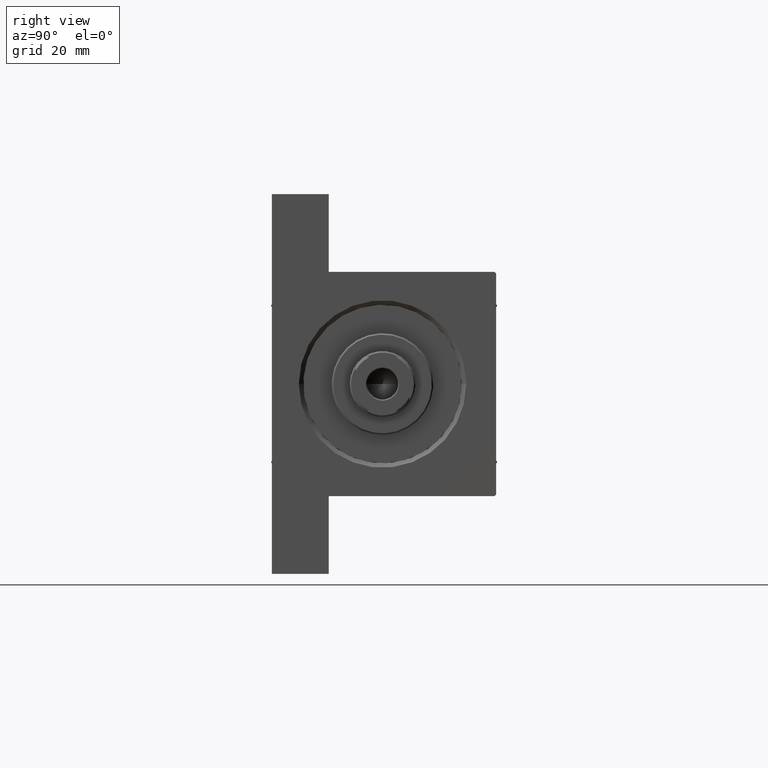
[diagram: clean part render]
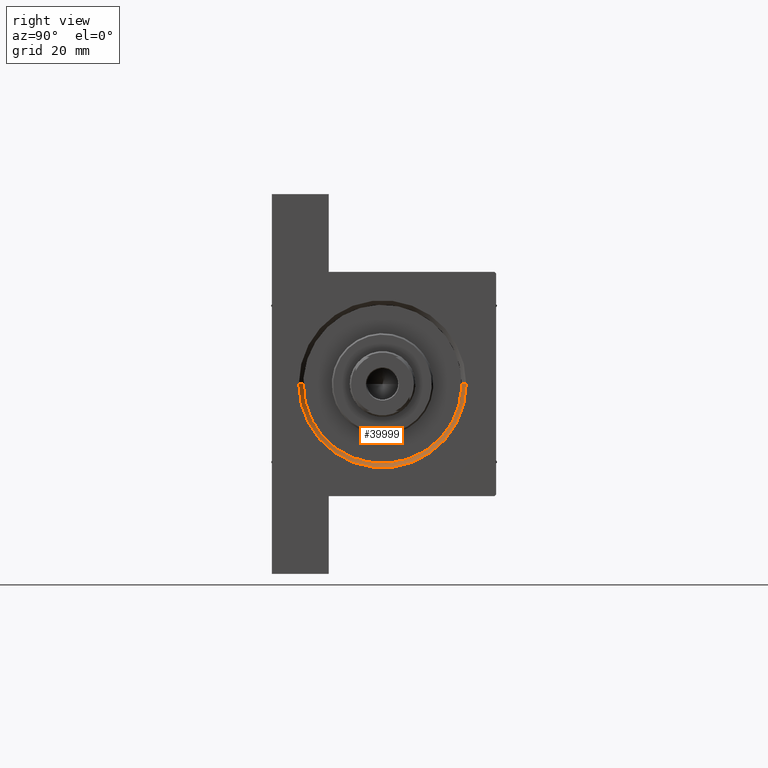
[diagram: same view with one face highlighted and labeled with its STEP entity id]
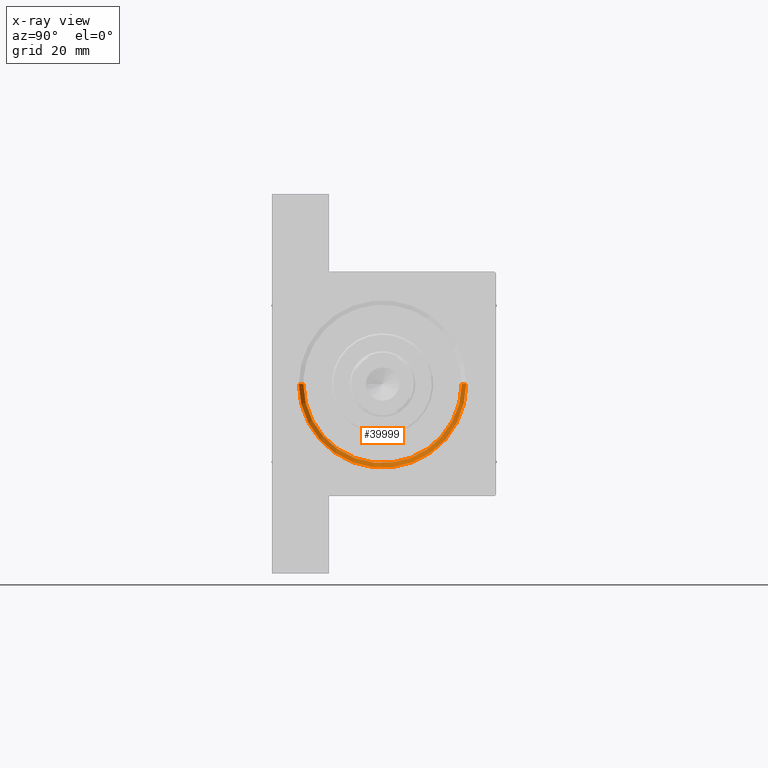
[diagram: x-ray of the same camera — body ghosted, the highlighted face saturated]
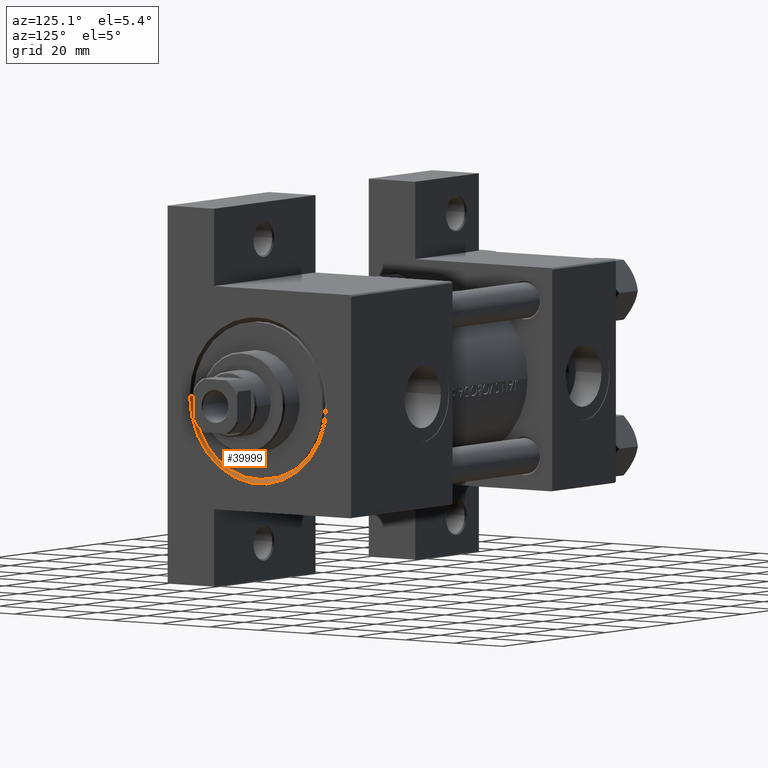
[diagram: same view with one face highlighted and labeled with its STEP entity id]
A machine part, right view. The second image highlights one B-rep face of the part: STEP entity #39999.
The next image is the same camera in x-ray: the body ghosted, the highlighted face saturated — about 0% of this face is hidden behind the body in this view.
A second angle (auxiliary view) of the same face is appended — the face is thin or edge-on in the first view.
In plain terms, the highlighted conical surface has half-angle 45 deg.
Its self-contained STEP definition (entity closure, byte-faithful):
#10 = CARTESIAN_POINT ( 'NONE',  ( 152.5000000000000568, 3.245314017740486554E-15, 26.00000000000000355 ) ) ;
#31 = ORIENTED_EDGE ( 'NONE', *, *, #28928, .T. ) ;
#2326 = AXIS2_PLACEMENT_3D ( 'NONE', #20925, #38977, #42103 ) ;
#2554 = CARTESIAN_POINT ( 'NONE',  ( 152.5000000000000568, 0.000000000000000000, -27.00000000000000355 ) ) ;
#5787 = EDGE_LOOP ( 'NONE', ( #13755, #11848, #31, #44317 ) ) ;
#5990 = EDGE_CURVE ( 'NONE', #23637, #9000, #11152, .T. ) ;
#6277 = FACE_OUTER_BOUND ( 'NONE', #5787, .T. ) ;
#9000 = VERTEX_POINT ( 'NONE', #10 ) ;
#9287 = VERTEX_POINT ( 'NONE', #42762 ) ;
#11152 = CIRCLE ( 'NONE', #35716, 26.50000000000000355 ) ;
#11848 = ORIENTED_EDGE ( 'NONE', *, *, #5990, .F. ) ;
#11854 = VECTOR ( 'NONE', #27494, 1000.000000000000114 ) ;
#13755 = ORIENTED_EDGE ( 'NONE', *, *, #42888, .F. ) ;
#16899 = CARTESIAN_POINT ( 'NONE',  ( 152.5000000000000568, 3.245314017740486554E-15, 26.00000000000000355 ) ) ;
#20010 = VECTOR ( 'NONE', #42533, 1000.000000000000114 ) ;
#20177 = DIRECTION ( 'NONE',  ( 1.000000000000000000, 0.000000000000000000, 0.000000000000000000 ) ) ;
#20925 = CARTESIAN_POINT ( 'NONE',  ( 154.0000000000000000, 0.000000000000000000, -0.5000000000000004441 ) ) ;
#21655 = DIRECTION ( 'NONE',  ( 0.000000000000000000, 0.000000000000000000, -1.000000000000000000 ) ) ;
#23637 = VERTEX_POINT ( 'NONE', #2554 ) ;
#23793 = CARTESIAN_POINT ( 'NONE',  ( 152.5000000000000568, 0.000000000000000000, -0.5000000000000004441 ) ) ;
#24741 = CARTESIAN_POINT ( 'NONE',  ( 152.5000000000000568, 0.000000000000000000, -27.00000000000000355 ) ) ;
#27442 = EDGE_CURVE ( 'NONE', #9287, #42350, #35347, .T. ) ;
#27494 = DIRECTION ( 'NONE',  ( 0.7071067811865361374, 8.659560562355073374E-17, 0.7071067811865588970 ) ) ;
#27931 = CONICAL_SURFACE ( 'NONE', #37135, 26.50000000000000355, 0.7853981633974644883 ) ;
#27932 = DIRECTION ( 'NONE',  ( 1.000000000000000000, 0.000000000000000000, 0.000000000000000000 ) ) ;
#28928 = EDGE_CURVE ( 'NONE', #23637, #42350, #43007, .T. ) ;
#31939 = DIRECTION ( 'NONE',  ( 0.000000000000000000, 0.000000000000000000, 1.000000000000000000 ) ) ;
#32237 = CARTESIAN_POINT ( 'NONE',  ( 152.5000000000000568, 0.000000000000000000, -0.5000000000000004441 ) ) ;
#35347 = CIRCLE ( 'NONE', #2326, 27.99999999999999645 ) ;
#35716 = AXIS2_PLACEMENT_3D ( 'NONE', #23793, #20177, #31939 ) ;
#37135 = AXIS2_PLACEMENT_3D ( 'NONE', #32237, #27932, #21655 ) ;
#38074 = LINE ( 'NONE', #16899, #11854 ) ;
#38977 = DIRECTION ( 'NONE',  ( -1.000000000000000000, -0.000000000000000000, 0.000000000000000000 ) ) ;
#39999 = ADVANCED_FACE ( 'NONE', ( #6277 ), #27931, .F. ) ;
#42103 = DIRECTION ( 'NONE',  ( 0.000000000000000000, 0.000000000000000000, 1.000000000000000000 ) ) ;
#42350 = VERTEX_POINT ( 'NONE', #47287 ) ;
#42533 = DIRECTION ( 'NONE',  ( 0.7071067811865361374, 0.000000000000000000, -0.7071067811865588970 ) ) ;
#42762 = CARTESIAN_POINT ( 'NONE',  ( 154.0000000000000000, 3.429011037612588881E-15, 27.49999999999999645 ) ) ;
#42888 = EDGE_CURVE ( 'NONE', #9000, #9287, #38074, .T. ) ;
#43007 = LINE ( 'NONE', #24741, #20010 ) ;
#44317 = ORIENTED_EDGE ( 'NONE', *, *, #27442, .F. ) ;
#47287 = CARTESIAN_POINT ( 'NONE',  ( 154.0000000000000000, 0.000000000000000000, -28.49999999999999645 ) ) ;